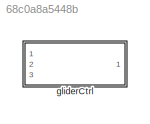
MODEL slx_68c0a8a5448b
KIND library
CONFIG AbsTol = auto
CONFIG EnableMultiTasking = off
CONFIG FixedStep = auto
CONFIG MaxStep = auto
CONFIG MinStep = auto
CONFIG RelTol = 1e-3
CONFIG SampleTimeConstraint = Unconstrained
CONFIG Solver = VariableStepAuto
CONFIG SolverName = VariableStepAuto
CONFIG StartTime = 0.0
CONFIG StopTime = 10.0
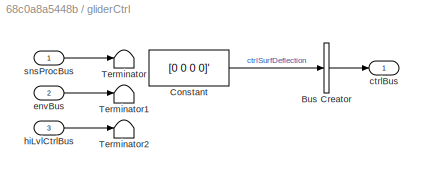
BLOCK [SubSystem] gliderCtrl
  InitFcn = initializeBussesFromBlock(gcb)
  LoadFcn = initializeBussesFromBlock(gcb)
  Ports = [3, 1]
  RequestExecContextInheritance = off
  StartFcn = initializeBussesFromBlock(gcb)
BLOCK [BusCreator] gliderCtrl/Bus Creator
  DisplayOption = bar
  InheritFromInputs = on
  Inputs = 1
  NonVirtualBus = on
  OutDataTypeStr = Bus: gndStnCtrlBus
  Ports = [1, 1]
BLOCK [Constant] gliderCtrl/Constant
  Value = [0 0 0 0]'
BLOCK [Terminator] gliderCtrl/Terminator
BLOCK [Terminator] gliderCtrl/Terminator1
BLOCK [Terminator] gliderCtrl/Terminator2
BLOCK [Outport] gliderCtrl/ctrlBus
  OutDataTypeStr = Bus: gndStnCtrlBus
  VectorParamsAs1DForOutWhenUnconnected = off
BLOCK [Inport] gliderCtrl/envBus
  OutDataTypeStr = Bus: envBus
  Port = 2
BLOCK [Inport] gliderCtrl/hiLvlCtrlBus
  OutDataTypeStr = Bus: hiLvlCtrlBus
  Port = 3
BLOCK [Inport] gliderCtrl/snsProcBus
  OutDataTypeStr = Bus: sensorsProcessingBus
LINE gliderCtrl/Bus Creator:1 -> gliderCtrl/ctrlBus:1
LINE gliderCtrl/Constant:1 -> gliderCtrl/Bus Creator:1
LINE gliderCtrl/envBus:1 -> gliderCtrl/Terminator1:1
LINE gliderCtrl/hiLvlCtrlBus:1 -> gliderCtrl/Terminator2:1
LINE gliderCtrl/snsProcBus:1 -> gliderCtrl/Terminator:1
